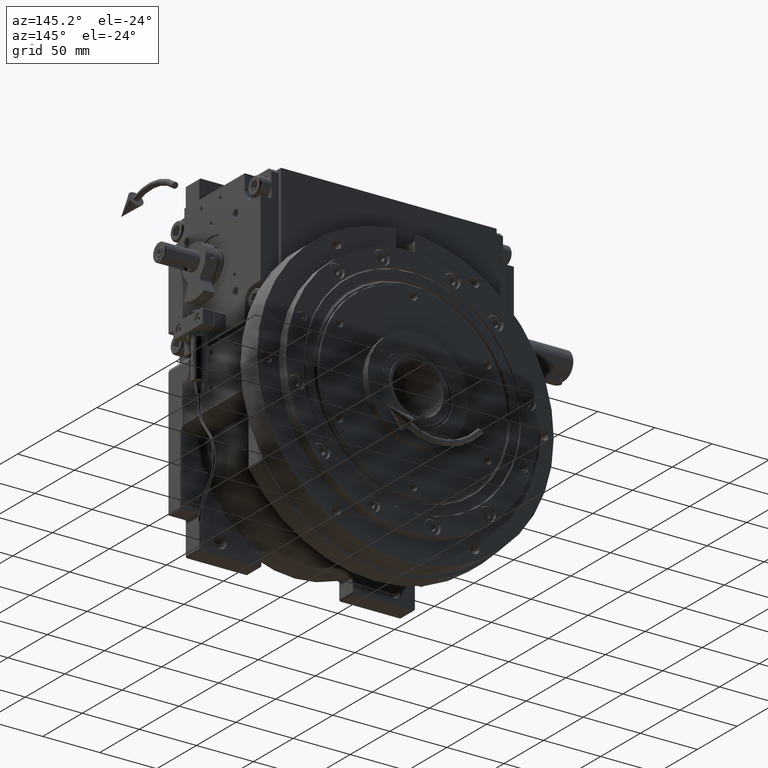
[diagram: clean part render]
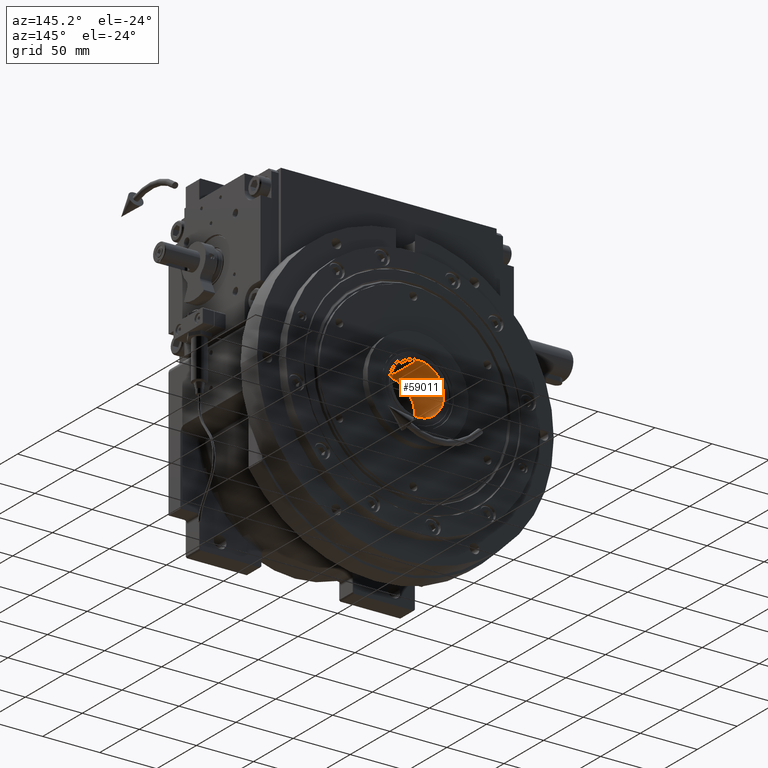
[diagram: same view with one face highlighted and labeled with its STEP entity id]
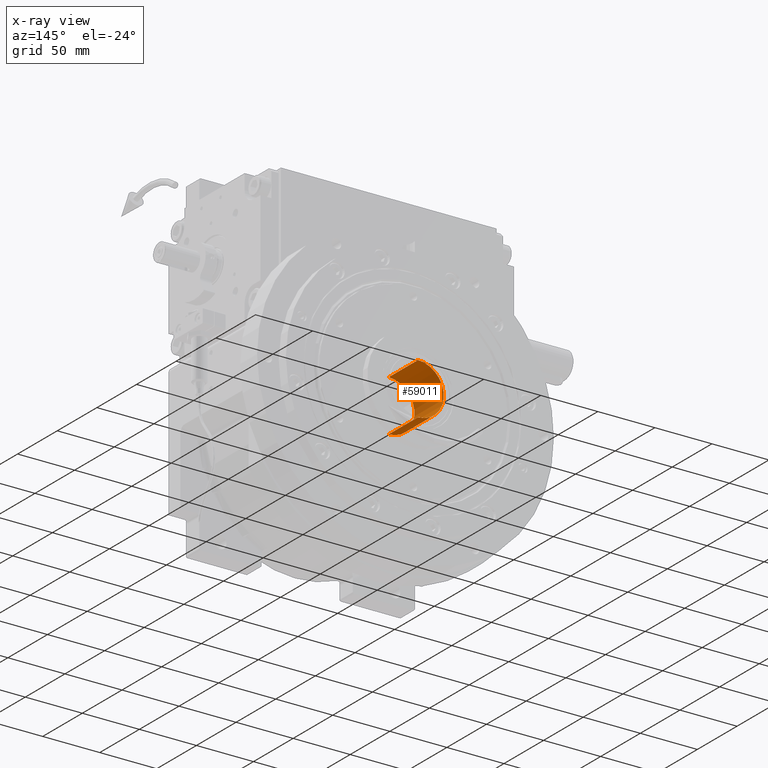
[diagram: x-ray of the same camera — body ghosted, the highlighted face saturated]
A machine part, auxiliary view. The second image highlights one B-rep face of the part: STEP entity #59011.
The next image is the same camera in x-ray: the body ghosted, the highlighted face saturated — about 2% of this face is hidden behind the body in this view.
In plain terms, the highlighted cylindrical surface (edge-blend (fillet) strip) has radius 22.5 mm, axis along (0, -1, 0).
Its self-contained STEP definition (entity closure, byte-faithful):
#160 = DIRECTION ( 'NONE',  ( -1.000000000000000000, 0.000000000000000000, 0.000000000000000000 ) ) ;
#381 = AXIS2_PLACEMENT_3D ( 'NONE', #36944, #14365, #20517 ) ;
#434 = VECTOR ( 'NONE', #4083, 1000.000000000000000 ) ;
#1490 = VERTEX_POINT ( 'NONE', #43194 ) ;
#3612 = CARTESIAN_POINT ( 'NONE',  ( 0.000000000000000000, 2.571673343026990270E-15, 9.999999999999994671 ) ) ;
#4083 = DIRECTION ( 'NONE',  ( 0.000000000000000000, 0.000000000000000000, -1.000000000000000000 ) ) ;
#5527 = VERTEX_POINT ( 'NONE', #14344 ) ;
#11871 = EDGE_CURVE ( 'NONE', #1490, #5527, #73739, .T. ) ;
#11982 = CARTESIAN_POINT ( 'NONE',  ( 0.000000000000000000, 0.000000000000000000, -26.99999999999999645 ) ) ;
#13915 = EDGE_CURVE ( 'NONE', #1490, #28146, #56119, .T. ) ;
#14344 = CARTESIAN_POINT ( 'NONE',  ( 22.50000000000000000, 1.775709547036180256E-15, 9.999999999999994671 ) ) ;
#14365 = DIRECTION ( 'NONE',  ( 0.000000000000000000, 0.000000000000000000, -1.000000000000000000 ) ) ;
#19655 = VERTEX_POINT ( 'NONE', #41868 ) ;
#20440 = CYLINDRICAL_SURFACE ( 'NONE', #32573, 22.50000000000000000 ) ;
#20517 = DIRECTION ( 'NONE',  ( -1.000000000000000000, 0.000000000000000000, 0.000000000000000000 ) ) ;
#21734 = AXIS2_PLACEMENT_3D ( 'NONE', #11982, #34948, #160 ) ;
#23724 = EDGE_LOOP ( 'NONE', ( #40468, #54093, #69710, #25988 ) ) ;
#25988 = ORIENTED_EDGE ( 'NONE', *, *, #11871, .F. ) ;
#28146 = VERTEX_POINT ( 'NONE', #36035 ) ;
#30296 = VECTOR ( 'NONE', #75026, 1000.000000000000000 ) ;
#32573 = AXIS2_PLACEMENT_3D ( 'NONE', #3612, #50279, #49519 ) ;
#34822 = LINE ( 'NONE', #51682, #30296 ) ;
#34948 = DIRECTION ( 'NONE',  ( 0.000000000000000000, 0.000000000000000000, -1.000000000000000000 ) ) ;
#36035 = CARTESIAN_POINT ( 'NONE',  ( -22.50000000000000000, 8.572244476756641794E-16, -26.99999999999999645 ) ) ;
#36944 = CARTESIAN_POINT ( 'NONE',  ( 0.000000000000000000, 0.000000000000000000, 9.999999999999994671 ) ) ;
#40468 = ORIENTED_EDGE ( 'NONE', *, *, #13915, .T. ) ;
#41868 = CARTESIAN_POINT ( 'NONE',  ( 22.50000000000000000, 1.775709547036180256E-15, -26.99999999999999645 ) ) ;
#43194 = CARTESIAN_POINT ( 'NONE',  ( -22.50000000000000000, 8.572244476756641794E-16, 9.999999999999994671 ) ) ;
#44178 = FACE_OUTER_BOUND ( 'NONE', #23724, .T. ) ;
#46730 = EDGE_CURVE ( 'NONE', #5527, #19655, #34822, .T. ) ;
#49519 = DIRECTION ( 'NONE',  ( -1.000000000000000000, 0.000000000000000000, 0.000000000000000000 ) ) ;
#50279 = DIRECTION ( 'NONE',  ( 0.000000000000000000, 0.000000000000000000, 1.000000000000000000 ) ) ;
#51682 = CARTESIAN_POINT ( 'NONE',  ( 22.50000000000000000, 5.327128641108539387E-15, 9.999999999999994671 ) ) ;
#54093 = ORIENTED_EDGE ( 'NONE', *, *, #75048, .T. ) ;
#54717 = CIRCLE ( 'NONE', #21734, 22.50000000000000000 ) ;
#56119 = LINE ( 'NONE', #56498, #434 ) ;
#56498 = CARTESIAN_POINT ( 'NONE',  ( -22.50000000000000000, 2.571673343026990270E-15, 9.999999999999994671 ) ) ;
#59011 = ADVANCED_FACE ( 'NONE', ( #44178 ), #20440, .F. ) ;
#69710 = ORIENTED_EDGE ( 'NONE', *, *, #46730, .F. ) ;
#73739 = CIRCLE ( 'NONE', #381, 22.50000000000000000 ) ;
#75026 = DIRECTION ( 'NONE',  ( 0.000000000000000000, 0.000000000000000000, -1.000000000000000000 ) ) ;
#75048 = EDGE_CURVE ( 'NONE', #28146, #19655, #54717, .T. ) ;